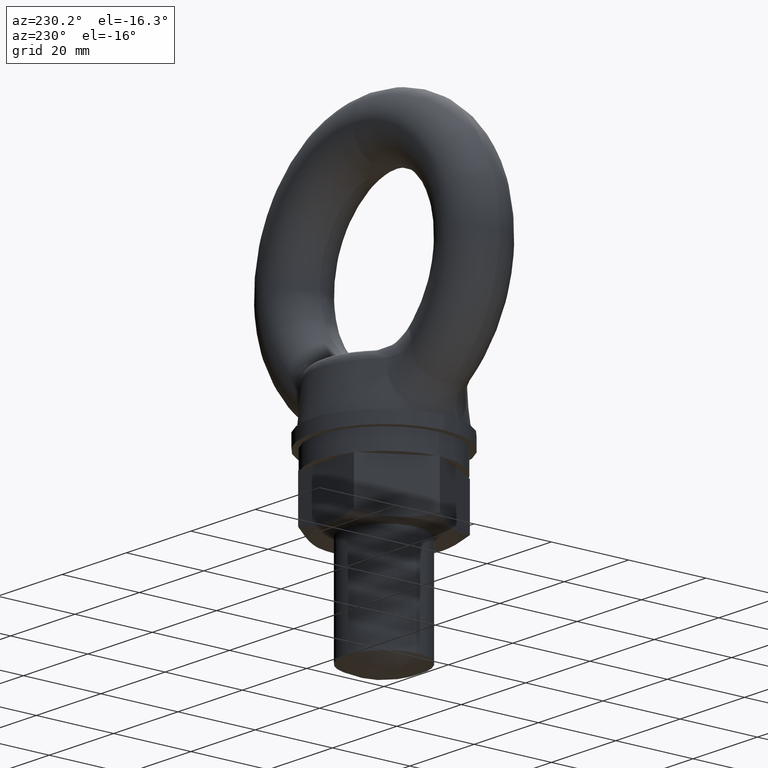
[diagram: clean part render]
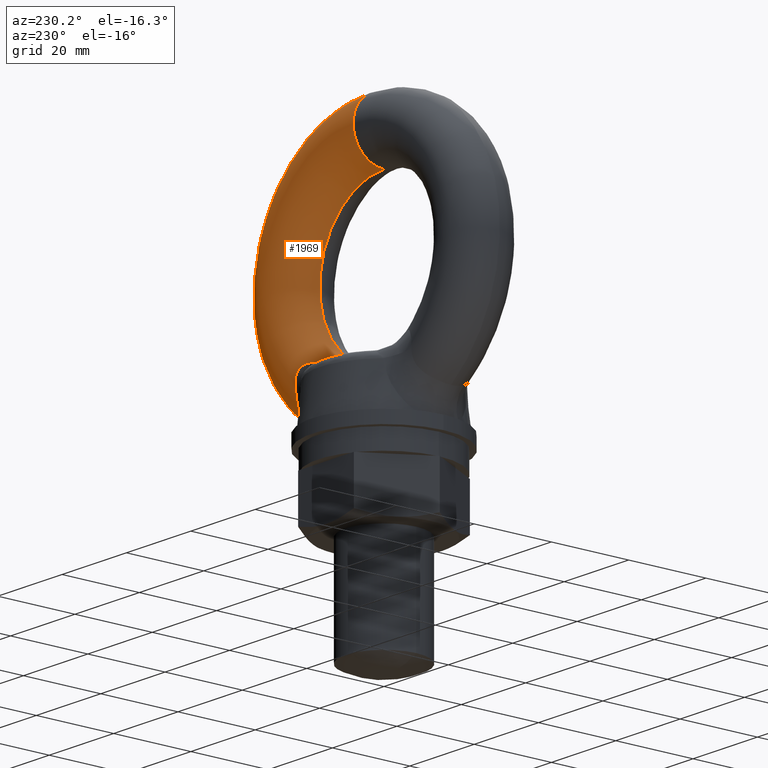
[diagram: same view with one face highlighted and labeled with its STEP entity id]
A machine part, auxiliary view. The second image highlights one B-rep face of the part: STEP entity #1969.
In plain terms, the highlighted toroidal blend (fillet) surface has major radius 28 mm and minor (blend) radius 8 mm.
Its self-contained STEP definition (entity closure, byte-faithful):
#1582 = VERTEX_POINT ( 'NONE', #2194 ) ;
#1594 = VERTEX_POINT ( 'NONE', #2273 ) ;
#1595 = VERTEX_POINT ( 'NONE', #2272 ) ;
#1736 = EDGE_CURVE ( 'NONE', #1582, #1595, #3379, .T. ) ;
#1934 = EDGE_CURVE ( 'NONE', #3396, #1594, #10475, .T. ) ;
#1969 = ADVANCED_FACE ( 'NONE', ( #10497 ), #10498, .T. ) ;
#1970 = EDGE_LOOP ( 'NONE', ( #1971, #1972, #1975, #1978, #1981, #1984, #1986, #1987 ) ) ;
#1971 = ORIENTED_EDGE ( 'NONE', *, *, #1934, .F. ) ;
#1972 = ORIENTED_EDGE ( 'NONE', *, *, #1973, .T. ) ;
#1973 = EDGE_CURVE ( 'NONE', #3396, #1974, #10468, .T. ) ;
#1974 = VERTEX_POINT ( 'NONE', #10467 ) ;
#1975 = ORIENTED_EDGE ( 'NONE', *, *, #1976, .T. ) ;
#1976 = EDGE_CURVE ( 'NONE', #1974, #1977, #10531, .T. ) ;
#1977 = VERTEX_POINT ( 'NONE', #10538 ) ;
#1978 = ORIENTED_EDGE ( 'NONE', *, *, #1979, .T. ) ;
#1979 = EDGE_CURVE ( 'NONE', #1977, #1980, #10509, .T. ) ;
#1980 = VERTEX_POINT ( 'NONE', #10508 ) ;
#1981 = ORIENTED_EDGE ( 'NONE', *, *, #1982, .T. ) ;
#1982 = EDGE_CURVE ( 'NONE', #1980, #1983, #10511, .T. ) ;
#1983 = VERTEX_POINT ( 'NONE', #10512 ) ;
#1984 = ORIENTED_EDGE ( 'NONE', *, *, #1985, .F. ) ;
#1985 = EDGE_CURVE ( 'NONE', #1582, #1983, #10377, .T. ) ;
#1986 = ORIENTED_EDGE ( 'NONE', *, *, #1736, .T. ) ;
#1987 = ORIENTED_EDGE ( 'NONE', *, *, #1988, .T. ) ;
#1988 = EDGE_CURVE ( 'NONE', #1595, #1594, #10464, .T. ) ;
#2194 = CARTESIAN_POINT ( 'NONE',  ( 0.0000000000000000000, 9.796850830579018100E-016, -20.00000000000000000 ) ) ;
#2272 = CARTESIAN_POINT ( 'NONE',  ( 2.449212707644754900E-015, 0.0000000000000000000, 20.00000000000000000 ) ) ;
#2273 = CARTESIAN_POINT ( 'NONE',  ( 4.408582873760558900E-015, 0.0000000000000000000, 36.00000000000000700 ) ) ;
#3379 = CIRCLE ( 'NONE', #3383, 20.00000000000000000 ) ;
#3380 = DIRECTION ( 'NONE',  ( 0.0000000000000000000, 0.0000000000000000000, -1.000000000000000000 ) ) ;
#3381 = DIRECTION ( 'NONE',  ( 0.0000000000000000000, -1.000000000000000000, 0.0000000000000000000 ) ) ;
#3382 = CARTESIAN_POINT ( 'NONE',  ( 0.0000000000000000000, 9.796850830579018100E-016, 0.0000000000000000000 ) ) ;
#3383 = AXIS2_PLACEMENT_3D ( 'NONE', #3382, #3381, #3380 ) ;
#3396 = VERTEX_POINT ( 'NONE', #10752 ) ;
#10377 = CIRCLE ( 'NONE', #10395, 8.000000000000000000 ) ;
#10378 = CARTESIAN_POINT ( 'NONE',  ( 6.823965996878886200E-013, 1.648912988659338300, -20.17177632180642600 ) ) ;
#10379 = CARTESIAN_POINT ( 'NONE',  ( 0.2927174952643111200, 1.648912988659372500, -20.17177632180641900 ) ) ;
#10380 = CARTESIAN_POINT ( 'NONE',  ( 0.5844058307862476400, 1.682952176673663300, -20.17240612736618000 ) ) ;
#10381 = CARTESIAN_POINT ( 'NONE',  ( 1.158679247754199800, 1.790291525782444800, -20.17148670969874400 ) ) ;
#10382 = CARTESIAN_POINT ( 'NONE',  ( 1.442697845560769500, 1.861999122008249500, -20.16971613795676900 ) ) ;
#10383 = CARTESIAN_POINT ( 'NONE',  ( 2.288186762667790800, 2.095962064465075200, -20.15610451816338900 ) ) ;
#10384 = CARTESIAN_POINT ( 'NONE',  ( 2.844284425707784200, 2.275894574762712200, -20.13577273363174000 ) ) ;
#10385 = CARTESIAN_POINT ( 'NONE',  ( 4.507113680566906300, 2.822904474455818000, -20.03377866517443800 ) ) ;
#10386 = CARTESIAN_POINT ( 'NONE',  ( 5.607621948508661800, 3.204019384009083800, -19.91148190844952000 ) ) ;
#10387 = CARTESIAN_POINT ( 'NONE',  ( 7.792840797011286300, 3.963240333849472400, -19.57153100779552800 ) ) ;
#10388 = CARTESIAN_POINT ( 'NONE',  ( 8.874770829690680400, 4.343217868695373500, -19.35477693205997000 ) ) ;
#10389 = CARTESIAN_POINT ( 'NONE',  ( 11.02624808514249800, 5.094259217671004000, -18.85268854059859900 ) ) ;
#10390 = CARTESIAN_POINT ( 'NONE',  ( 12.09568278882729900, 5.465681299482348300, -18.56740552890373800 ) ) ;
#10391 = CARTESIAN_POINT ( 'NONE',  ( 13.16581114616844100, 5.822891640927250200, -18.26337593279295000 ) ) ;
#10392 = DIRECTION ( 'NONE',  ( 0.0000000000000000000, 0.0000000000000000000, 1.000000000000000000 ) ) ;
#10393 = DIRECTION ( 'NONE',  ( -1.000000000000000000, 0.0000000000000000000, 0.0000000000000000000 ) ) ;
#10394 = CARTESIAN_POINT ( 'NONE',  ( 0.0000000000000000000, 0.0000000000000000000, -28.00000000000000000 ) ) ;
#10395 = AXIS2_PLACEMENT_3D ( 'NONE', #10394, #10393, #10392 ) ;
#10396 = CARTESIAN_POINT ( 'NONE',  ( 13.16581114616844100, 5.822891640927250200, -18.26337593279295000 ) ) ;
#10397 = CARTESIAN_POINT ( 'NONE',  ( 13.49608025271707000, 5.933135930324516100, -18.16954458781173500 ) ) ;
#10398 = CARTESIAN_POINT ( 'NONE',  ( 13.82544064071039000, 6.053619954093565300, -18.08939103995022200 ) ) ;
#10399 = CARTESIAN_POINT ( 'NONE',  ( 14.48640084289624300, 6.316706671593726300, -17.97827653573514100 ) ) ;
#10400 = CARTESIAN_POINT ( 'NONE',  ( 14.81750220859130400, 6.459337599431634700, -17.94770816610432000 ) ) ;
#10401 = CARTESIAN_POINT ( 'NONE',  ( 15.46841800058392600, 6.757654925999480300, -17.97081371513874300 ) ) ;
#10402 = CARTESIAN_POINT ( 'NONE',  ( 15.79371041505116900, 6.916048541418006400, -18.02615464871732000 ) ) ;
#10403 = CARTESIAN_POINT ( 'NONE',  ( 16.25075426370440100, 7.145089189322589200, -18.19840523469892800 ) ) ;
#10404 = CARTESIAN_POINT ( 'NONE',  ( 16.39998693967268700, 7.220948621053674200, -18.27151688570332100 ) ) ;
#10405 = CARTESIAN_POINT ( 'NONE',  ( 16.67968600936423200, 7.363606258302809200, -18.44515517041799100 ) ) ;
#10406 = CARTESIAN_POINT ( 'NONE',  ( 16.81098070684610200, 7.430801401975548600, -18.54565475779688900 ) ) ;
#10407 = CARTESIAN_POINT ( 'NONE',  ( 17.18029630242248700, 7.618353206800730200, -18.88785364446993100 ) ) ;
#10408 = CARTESIAN_POINT ( 'NONE',  ( 17.39227668821254400, 7.723481714237320400, -19.17235907743152600 ) ) ;
#10409 = CARTESIAN_POINT ( 'NONE',  ( 17.72613025056091700, 7.878836449315238100, -19.79191951133551100 ) ) ;
#10410 = CARTESIAN_POINT ( 'NONE',  ( 17.84987959965029000, 7.930441025987373200, -20.12360288935503400 ) ) ;
#10411 = CARTESIAN_POINT ( 'NONE',  ( 18.02878430504984000, 7.993391866429646200, -20.82156496729872000 ) ) ;
#10412 = CARTESIAN_POINT ( 'NONE',  ( 18.08006779931692900, 8.003476655799941500, -21.17334052725825800 ) ) ;
#10460 = DIRECTION ( 'NONE',  ( -1.224606353822377000E-016, 0.0000000000000000000, -1.000000000000000000 ) ) ;
#10461 = DIRECTION ( 'NONE',  ( 1.000000000000000000, 0.0000000000000000000, -1.224606353822377300E-016 ) ) ;
#10462 = CARTESIAN_POINT ( 'NONE',  ( 3.428897790702656300E-015, 0.0000000000000000000, 28.00000000000000000 ) ) ;
#10463 = AXIS2_PLACEMENT_3D ( 'NONE', #10462, #10461, #10460 ) ;
#10464 = CIRCLE ( 'NONE', #10463, 8.000000000000000000 ) ;
#10465 = CARTESIAN_POINT ( 'NONE',  ( 20.82274396233960100, 0.3333125823818174900, -29.36687477207694400 ) ) ;
#10466 = CARTESIAN_POINT ( 'NONE',  ( 20.82274396233959700, 2.608593644003436100E-016, -29.36687477207695500 ) ) ;
#10467 = CARTESIAN_POINT ( 'NONE',  ( 20.22635143677735000, 3.850677136497699900, -28.57893508878720100 ) ) ;
#10468 = B_SPLINE_CURVE_WITH_KNOTS ( 'NONE', 3,
 ( #10466, #10465, #10537, #10536, #10535, #10534, #10533, #10532 ),
 .UNSPECIFIED., .F., .F.,
 ( 4, 2, 2, 4 ),
 ( 0.004061130604967873100, 0.005076329865826376800, 0.006091529126684881400, 0.008121927648401888700 ),
 .UNSPECIFIED. ) ;
#10469 = DIRECTION ( 'NONE',  ( 0.0000000000000000000, 0.0000000000000000000, -1.000000000000000000 ) ) ;
#10470 = DIRECTION ( 'NONE',  ( 0.0000000000000000000, -1.000000000000000000, 0.0000000000000000000 ) ) ;
#10471 = AXIS2_PLACEMENT_3D ( 'NONE', #10503, #10470, #10469 ) ;
#10472 = DIRECTION ( 'NONE',  ( 0.0000000000000000000, -1.000000000000000000, 0.0000000000000000000 ) ) ;
#10473 = CARTESIAN_POINT ( 'NONE',  ( 0.0000000000000000000, 0.0000000000000000000, 0.0000000000000000000 ) ) ;
#10474 = AXIS2_PLACEMENT_3D ( 'NONE', #10473, #10472, #10604 ) ;
#10475 = CIRCLE ( 'NONE', #10474, 36.00000000000000700 ) ;
#10497 = FACE_OUTER_BOUND ( 'NONE', #1970, .T. ) ;
#10498 = TOROIDAL_SURFACE ( 'NONE', #10471, 28.00000000000000000, 8.000000000000000000 ) ;
#10503 = CARTESIAN_POINT ( 'NONE',  ( 0.0000000000000000000, 0.0000000000000000000, 0.0000000000000000000 ) ) ;
#10508 = CARTESIAN_POINT ( 'NONE',  ( 13.16581114616844100, 5.822891640927250200, -18.26337593279295000 ) ) ;
#10509 = B_SPLINE_CURVE_WITH_KNOTS ( 'NONE', 3,
 ( #10510, #10530, #10529, #10412, #10411, #10410, #10409, #10408, #10407, #10406, #10405, #10404, #10403, #10402, #10401, #10400, #10399, #10398, #10397, #10396 ),
 .UNSPECIFIED., .F., .F.,
 ( 4, 2, 2, 2, 2, 2, 2, 2, 2, 4 ),
 ( 0.0000000000000000000, 0.001061884085914531300, 0.002123768171829062500, 0.003185652257743594000, 0.004247536343658125100, 0.004778478386615393400, 0.005309420429572662600, 0.006371304515487208000, 0.007433188601401748100, 0.008495072687316288300 ),
 .UNSPECIFIED. ) ;
#10510 = CARTESIAN_POINT ( 'NONE',  ( 18.07603648372269600, 7.945372300636390300, -22.59188056541010100 ) ) ;
#10511 = B_SPLINE_CURVE_WITH_KNOTS ( 'NONE', 3,
 ( #10391, #10390, #10389, #10388, #10387, #10386, #10385, #10384, #10383, #10382, #10381, #10380, #10379, #10378 ),
 .UNSPECIFIED., .F., .F.,
 ( 4, 2, 2, 2, 2, 2, 4 ),
 ( 0.0000000000000000000, 0.003500089843752328100, 0.007000179687504656100, 0.01050026953125698400, 0.01225031445313314700, 0.01312533691407123000, 0.01400035937500931200 ),
 .UNSPECIFIED. ) ;
#10512 = CARTESIAN_POINT ( 'NONE',  ( 6.823965996878886200E-013, 1.648912988659338300, -20.17177632180642600 ) ) ;
#10513 = CARTESIAN_POINT ( 'NONE',  ( 18.07603648372269600, 7.945372300636390300, -22.59188056541010100 ) ) ;
#10514 = CARTESIAN_POINT ( 'NONE',  ( 18.04054247296236100, 7.917021695497936700, -22.92937936844069600 ) ) ;
#10515 = CARTESIAN_POINT ( 'NONE',  ( 18.02294308099864800, 7.875853099239256100, -23.26748662458161100 ) ) ;
#10516 = CARTESIAN_POINT ( 'NONE',  ( 18.03220608410685300, 7.758872730580869800, -23.93743834888671200 ) ) ;
#10517 = CARTESIAN_POINT ( 'NONE',  ( 18.05958299474205100, 7.682464375572251000, -24.27030221711561700 ) ) ;
#10518 = CARTESIAN_POINT ( 'NONE',  ( 18.15940386058475700, 7.491003069110536900, -24.90757987614506800 ) ) ;
#10519 = CARTESIAN_POINT ( 'NONE',  ( 18.23158240396273700, 7.375861049605297200, -25.21381516144220600 ) ) ;
#10520 = CARTESIAN_POINT ( 'NONE',  ( 18.41493576542328400, 7.101233061930406300, -25.80065298911720000 ) ) ;
#10521 = CARTESIAN_POINT ( 'NONE',  ( 18.52675622652376600, 6.940743853943769400, -26.08212912476770000 ) ) ;
#10522 = CARTESIAN_POINT ( 'NONE',  ( 18.89647459336574900, 6.400572332127119100, -26.86654441111974000 ) ) ;
#10523 = CARTESIAN_POINT ( 'NONE',  ( 19.18056745787588100, 5.971913125181026200, -27.30223167005001300 ) ) ;
#10524 = CARTESIAN_POINT ( 'NONE',  ( 19.59844567961868800, 5.230220122879420500, -27.86015683620674100 ) ) ;
#10525 = CARTESIAN_POINT ( 'NONE',  ( 19.73498437145485300, 4.969169817883323700, -28.02760433356973000 ) ) ;
#10526 = CARTESIAN_POINT ( 'NONE',  ( 19.99258515031222300, 4.426770075522743900, -28.32748653070828500 ) ) ;
#10527 = CARTESIAN_POINT ( 'NONE',  ( 20.11427152996070300, 4.144393324560704500, -28.46066157516943200 ) ) ;
#10528 = CARTESIAN_POINT ( 'NONE',  ( 20.22635143677735000, 3.850677136497699900, -28.57893508878720100 ) ) ;
#10529 = CARTESIAN_POINT ( 'NONE',  ( 18.12260647304777500, 7.994548373312367700, -21.87993876361077000 ) ) ;
#10530 = CARTESIAN_POINT ( 'NONE',  ( 18.11356389061676700, 7.975347067419112300, -22.23504698598968300 ) ) ;
#10531 = B_SPLINE_CURVE_WITH_KNOTS ( 'NONE', 3,
 ( #10528, #10527, #10526, #10525, #10524, #10523, #10522, #10521, #10520, #10519, #10518, #10517, #10516, #10515, #10514, #10513 ),
 .UNSPECIFIED., .F., .F.,
 ( 4, 2, 2, 2, 2, 2, 2, 4 ),
 ( 0.01610551802902954900, 0.01711428254501625900, 0.01812304706100297000, 0.02014057609297638700, 0.02114934060896309400, 0.02215810512494979800, 0.02316686964093650500, 0.02417563415692321200 ),
 .UNSPECIFIED. ) ;
#10532 = CARTESIAN_POINT ( 'NONE',  ( 20.22635143677735000, 3.850677136497699900, -28.57893508878720100 ) ) ;
#10533 = CARTESIAN_POINT ( 'NONE',  ( 20.45218448737297800, 3.258859881794904800, -28.81724781712205500 ) ) ;
#10534 = CARTESIAN_POINT ( 'NONE',  ( 20.59603642070353000, 2.638285941380819300, -29.01523389992597800 ) ) ;
#10535 = CARTESIAN_POINT ( 'NONE',  ( 20.73540599022221900, 1.666234829499337700, -29.22248958426969900 ) ) ;
#10536 = CARTESIAN_POINT ( 'NONE',  ( 20.76888547548119100, 1.332880035850261900, -29.27674697320312400 ) ) ;
#10537 = CARTESIAN_POINT ( 'NONE',  ( 20.81241227235395300, 0.6665516782714809900, -29.34876666378846000 ) ) ;
#10538 = CARTESIAN_POINT ( 'NONE',  ( 18.07603648372269600, 7.945372300636390300, -22.59188056541010100 ) ) ;
#10604 = DIRECTION ( 'NONE',  ( 0.0000000000000000000, 0.0000000000000000000, -1.000000000000000000 ) ) ;
#10752 = CARTESIAN_POINT ( 'NONE',  ( 20.82274396233959700, 2.608593644003436100E-016, -29.36687477207695500 ) ) ;